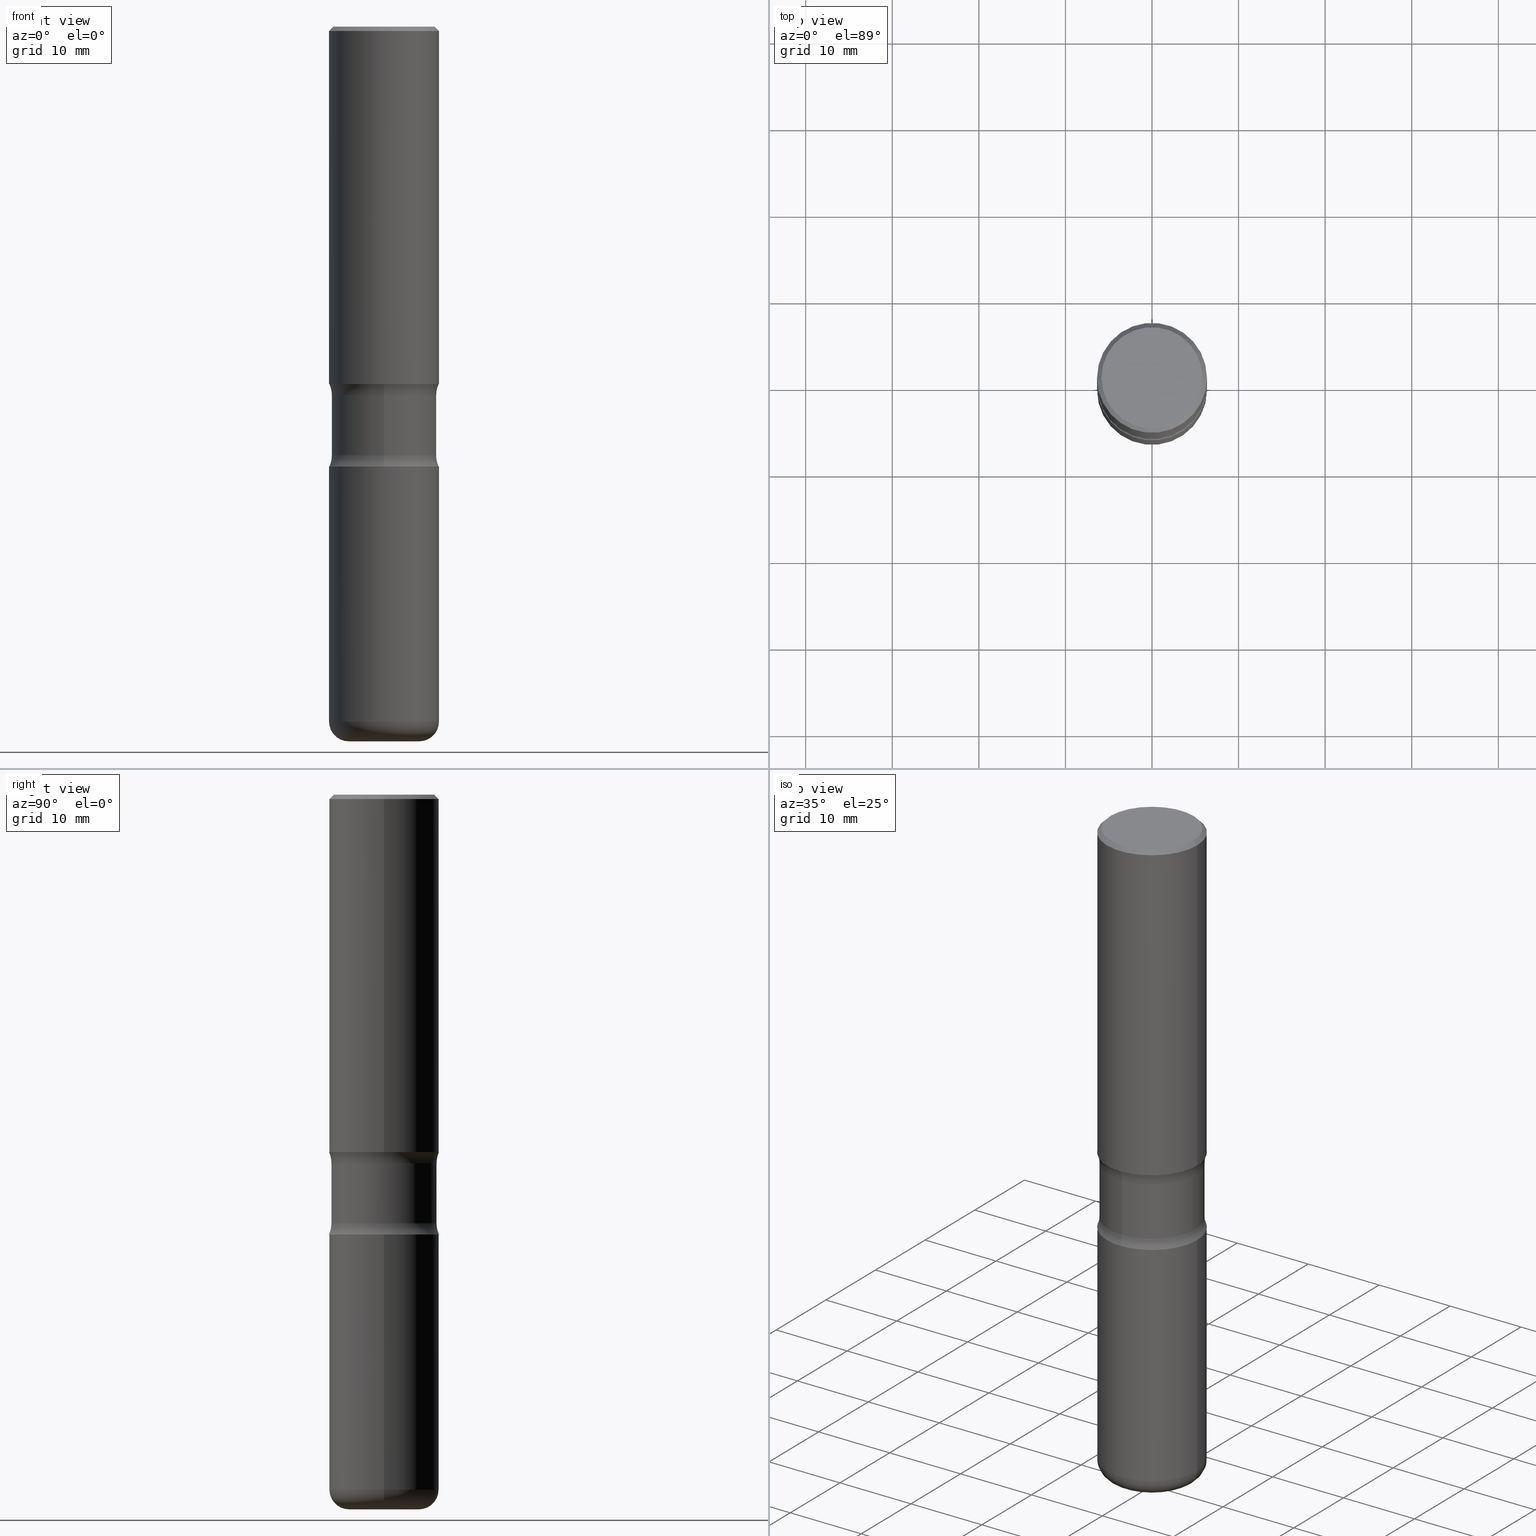
[diagram: canonical four-view strip — front | top / right | iso, engineering-drawing reading convention]
A machine part, canonical four-view strip (front | top / right | iso — engineering-drawing reading convention). The complete STEP part file that produces these views, byte-faithful:
ISO-10303-21;
HEADER;
FILE_DESCRIPTION (( 'STEP AP203' ),
    '1' );
FILE_NAME ('34018.STEP',
    '2024-03-01T22:56:39',
    ( '' ),
    ( '' ),
    'SwSTEP 2.0',
    'SolidWorks 2023',
    '' );
FILE_SCHEMA (( 'CONFIG_CONTROL_DESIGN' ));
ENDSEC;

DATA;
#1 = FACE_OUTER_BOUND ( 'NONE', #469, .T. ) ;
#2 = VERTEX_POINT ( 'NONE', #289 ) ;
#3 = DATE_AND_TIME ( #138, #49 ) ;
#4 = ORIENTED_EDGE ( 'NONE', *, *, #493, .F. ) ;
#5 = AXIS2_PLACEMENT_3D ( 'NONE', #192, #396, #486 ) ;
#6 = APPROVAL_STATUS ( 'not_yet_approved' ) ;
#7 = LINE ( 'NONE', #327, #521 ) ;
#8 = CC_DESIGN_PERSON_AND_ORGANIZATION_ASSIGNMENT ( #435, #485, ( #158 ) ) ;
#9 = ORIENTED_EDGE ( 'NONE', *, *, #105, .T. ) ;
#10 = APPLICATION_CONTEXT ( 'configuration controlled 3d designs of mechanical parts and assemblies' ) ;
#11 = APPROVAL_DATE_TIME ( #3, #148 ) ;
#12 = CARTESIAN_POINT ( 'NONE',  ( 4.890937612370274875E-29, -6.982962677686292743E-15, -2.000000000000000444 ) ) ;
#13 = EDGE_CURVE ( 'NONE', #339, #314, #405, .T. ) ;
#14 = VERTEX_POINT ( 'NONE', #249 ) ;
#15 = ORIENTED_EDGE ( 'NONE', *, *, #165, .T. ) ;
#16 = EDGE_LOOP ( 'NONE', ( #296, #519, #79, #173 ) ) ;
#17 = FACE_OUTER_BOUND ( 'NONE', #397, .T. ) ;
#18 = AXIS2_PLACEMENT_3D ( 'NONE', #203, #155, #331 ) ;
#19 = VECTOR ( 'NONE', #416, 39.37007874015748143 ) ;
#20 = COORDINATED_UNIVERSAL_TIME_OFFSET ( 5, 0, .BEHIND. ) ;
#21 = CARTESIAN_POINT ( 'NONE',  ( -0.2300000000000002320, 1.640996229256274294E-15, -3.414809992081464243E-17 ) ) ;
#22 = ORIENTED_EDGE ( 'NONE', *, *, #63, .F. ) ;
#23 = FACE_OUTER_BOUND ( 'NONE', #135, .T. ) ;
#24 = DIRECTION ( 'NONE',  ( 2.319831445618894347E-29, -3.671401190008483650E-15, -1.000000000000000000 ) ) ;
#25 = CIRCLE ( 'NONE', #146, 0.2500000000000006106 ) ;
#26 = CC_DESIGN_SECURITY_CLASSIFICATION ( #189, ( #85 ) ) ;
#27 = DIRECTION ( 'NONE',  ( 1.000000000000000000, -6.982962677686270655E-15, 0.000000000000000000 ) ) ;
#28 = ORIENTED_EDGE ( 'NONE', *, *, #37, .F. ) ;
#29 = PLANE ( 'NONE',  #274 ) ;
#30 = ORIENTED_EDGE ( 'NONE', *, *, #497, .T. ) ;
#31 = ADVANCED_FACE ( 'NONE', ( #336 ), #93, .T. ) ;
#32 = ADVANCED_FACE ( 'NONE', ( #108 ), #503, .F. ) ;
#33 = DIRECTION ( 'NONE',  ( -2.445468806185136597E-29, 3.491481338843145583E-15, 1.000000000000000000 ) ) ;
#34 = FACE_OUTER_BOUND ( 'NONE', #478, .T. ) ;
#35 = LOCAL_TIME ( 17, 56, 39.00000000000000000, #326 ) ;
#36 = CARTESIAN_POINT ( 'NONE',  ( -0.2500000000000004441, -9.256724191344087541E-15, -3.160000000000000142 ) ) ;
#37 = EDGE_CURVE ( 'NONE', #556, #250, #112, .T. ) ;
#38 = APPLICATION_CONTEXT ( 'configuration controlled 3d designs of mechanical parts and assemblies' ) ;
#39 = ORIENTED_EDGE ( 'NONE', *, *, #260, .F. ) ;
#40 = DIRECTION ( 'NONE',  ( 0.7071067811865473507, -7.319954787623256045E-15, -0.7071067811865476838 ) ) ;
#41 = DIRECTION ( 'NONE',  ( -2.445468806185136597E-29, 3.491481338843145583E-15, 1.000000000000000000 ) ) ;
#42 = EDGE_LOOP ( 'NONE', ( #292, #30, #39, #463 ) ) ;
#43 = ORIENTED_EDGE ( 'NONE', *, *, #165, .F. ) ;
#44 = CARTESIAN_POINT ( 'NONE',  ( 1.668928079967096646E-15, 0.2389999999999885827, -3.250000000000001332 ) ) ;
#45 = APPROVAL_ROLE ( '' ) ;
#46 = CARTESIAN_POINT ( 'NONE',  ( 0.000000000000000000, 0.000000000000000000, 0.000000000000000000 ) ) ;
#47 = AXIS2_PLACEMENT_3D ( 'NONE', #548, #160, #301 ) ;
#48 = AXIS2_PLACEMENT_3D ( 'NONE', #70, #287, #27 ) ;
#49 = LOCAL_TIME ( 17, 56, 39.00000000000000000, #277 ) ;
#50 = DATE_AND_TIME ( #89, #293 ) ;
#51 = DIRECTION ( 'NONE',  ( 1.000000000000000000, -6.982962677686265922E-15, 4.876176775795935232E-29 ) ) ;
#52 = DATE_AND_TIME ( #236, #147 ) ;
#53 = ORIENTED_EDGE ( 'NONE', *, *, #97, .T. ) ;
#54 = CARTESIAN_POINT ( 'NONE',  ( 4.890937612370306439E-31, -6.982962677686338448E-17, -0.02000000000000013572 ) ) ;
#55 = CARTESIAN_POINT ( 'NONE',  ( 0.000000000000000000, 0.000000000000000000, 0.000000000000000000 ) ) ;
#56 = DIRECTION ( 'NONE',  ( 6.982962677686265922E-15, 1.000000000000000000, -3.671401190008483650E-15 ) ) ;
#57 = VECTOR ( 'NONE', #168, 39.37007874015748143 ) ;
#58 = CIRCLE ( 'NONE', #494, 0.2500000000000004996 ) ;
#59 = APPROVAL_PERSON_ORGANIZATION ( #134, #206, #45 ) ;
#60 = DIRECTION ( 'NONE',  ( 2.319831445618894347E-29, -3.671401190008483650E-15, -1.000000000000000000 ) ) ;
#61 = EDGE_CURVE ( 'NONE', #316, #419, #328, .T. ) ;
#62 = CARTESIAN_POINT ( 'NONE',  ( 2.541798414677842119E-15, 0.3639999999999942171, -1.676273774973179753 ) ) ;
#63 = EDGE_CURVE ( 'NONE', #475, #99, #501, .T. ) ;
#64 = PLANE ( 'NONE',  #291 ) ;
#65 = DIRECTION ( 'NONE',  ( 1.000000000000000000, -6.982962677686266711E-15, 4.875813741439094729E-29 ) ) ;
#66 =( GEOMETRIC_REPRESENTATION_CONTEXT ( 3 ) GLOBAL_UNCERTAINTY_ASSIGNED_CONTEXT ( ( #229 ) ) GLOBAL_UNIT_ASSIGNED_CONTEXT ( ( #467, #77, #95 ) ) REPRESENTATION_CONTEXT ( 'NONE', 'WORKASPACE' ) );
#67 = CARTESIAN_POINT ( 'NONE',  ( 4.139947335781554076E-29, -5.794433829885863530E-15, -1.676273774973178199 ) ) ;
#68 = DIRECTION ( 'NONE',  ( 1.000000000000000000, -6.860497997771530774E-15, 4.838595496925816082E-29 ) ) ;
#69 = CC_DESIGN_PERSON_AND_ORGANIZATION_ASSIGNMENT ( #100, #280, ( #189 ) ) ;
#70 = CARTESIAN_POINT ( 'NONE',  ( 7.947773620101692818E-29, -1.134731435124022127E-14, -3.249999999999999556 ) ) ;
#71 = EDGE_LOOP ( 'NONE', ( #43, #543, #255, #177 ) ) ;
#72 = VECTOR ( 'NONE', #529, 39.37007874015748143 ) ;
#73 = AXIS2_PLACEMENT_3D ( 'NONE', #67, #24, #194 ) ;
#74 = CARTESIAN_POINT ( 'NONE',  ( 0.2500000000000005551, -7.419397845041682046E-15, -1.624999999999999778 ) ) ;
#75 = ORIENTED_EDGE ( 'NONE', *, *, #151, .T. ) ;
#76 = DIMENSIONAL_EXPONENTS ( 1.000000000000000000, 0.000000000000000000, 0.000000000000000000, 0.000000000000000000, 0.000000000000000000, 0.000000000000000000, 0.000000000000000000 ) ;
#77 =( NAMED_UNIT ( * ) PLANE_ANGLE_UNIT ( ) SI_UNIT ( $, .RADIAN. ) );
#78 = EDGE_CURVE ( 'NONE', #314, #303, #411, .T. ) ;
#79 = ORIENTED_EDGE ( 'NONE', *, *, #334, .F. ) ;
#80 = CARTESIAN_POINT ( 'NONE',  ( 3.973886810050846409E-29, -5.673657175620110635E-15, -1.624999999999999778 ) ) ;
#81 = ORIENTED_EDGE ( 'NONE', *, *, #298, .F. ) ;
#82 = ORIENTED_EDGE ( 'NONE', *, *, #181, .F. ) ;
#83 = CARTESIAN_POINT ( 'NONE',  ( 8.350811314681758556E-46, -1.192274536304357760E-31, -3.414809992080329023E-17 ) ) ;
#84 = AXIS2_PLACEMENT_3D ( 'NONE', #375, #153, #251 ) ;
#85 = PRODUCT_DEFINITION_FORMATION_WITH_SPECIFIED_SOURCE ( 'ANY', '', #158, .NOT_KNOWN. ) ;
#86 = CARTESIAN_POINT ( 'NONE',  ( 3.973886810050846409E-29, -5.673657175620110635E-15, -1.624999999999999778 ) ) ;
#87 = DESIGN_CONTEXT ( 'detailed design', #38, 'design' ) ;
#88 = DIRECTION ( 'NONE',  ( 1.000000000000000000, -6.982962677686266711E-15, 0.000000000000000000 ) ) ;
#89 = CALENDAR_DATE ( 2024, 1, 3 ) ;
#90 = ADVANCED_FACE ( 'NONE', ( #423 ), #513, .T. ) ;
#91 = CC_DESIGN_DATE_AND_TIME_ASSIGNMENT ( #398, #190, ( #189 ) ) ;
#92 = CARTESIAN_POINT ( 'NONE',  ( -1.639659021467319230E-15, -0.2390000000000117586, -3.249999999999999112 ) ) ;
#93 = TOROIDAL_SURFACE ( 'NONE', #282, 0.1600000000000005862, 0.08999999999999967748 ) ;
#94 = AXIS2_PLACEMENT_3D ( 'NONE', #80, #215, #117 ) ;
#95 =( NAMED_UNIT ( * ) SI_UNIT ( $, .STERADIAN. ) SOLID_ANGLE_UNIT ( ) );
#96 = ORIENTED_EDGE ( 'NONE', *, *, #238, .T. ) ;
#97 = EDGE_CURVE ( 'NONE', #154, #303, #499, .T. ) ;
#98 = DIRECTION ( 'NONE',  ( 6.860497997771530774E-15, 1.000000000000000000, 0.000000000000000000 ) ) ;
#99 = VERTEX_POINT ( 'NONE', #437 ) ;
#100 = PERSON_AND_ORGANIZATION ( #232, #394 ) ;
#101 = FACE_OUTER_BOUND ( 'NONE', #16, .T. ) ;
#102 = ORIENTED_EDGE ( 'NONE', *, *, #181, .T. ) ;
#103 = CARTESIAN_POINT ( 'NONE',  ( 1.668928079967066866E-15, 0.2389999999999934122, -1.948726225026823355 ) ) ;
#104 = AXIS2_PLACEMENT_3D ( 'NONE', #204, #33, #378 ) ;
#105 = EDGE_CURVE ( 'NONE', #213, #303, #385, .T. ) ;
#106 = EDGE_CURVE ( 'NONE', #184, #2, #241, .T. ) ;
#107 = DIRECTION ( 'NONE',  ( 2.438088387897960049E-29, -3.491481338843145188E-15, -1.000000000000000000 ) ) ;
#108 = FACE_OUTER_BOUND ( 'NONE', #383, .T. ) ;
#109 = EDGE_CURVE ( 'NONE', #419, #316, #483, .T. ) ;
#110 = CARTESIAN_POINT ( 'NONE',  ( -0.2500000000000003331, 1.675911042644705746E-15, -0.02000000000000013572 ) ) ;
#111 = FACE_OUTER_BOUND ( 'NONE', #472, .T. ) ;
#112 = CIRCLE ( 'NONE', #345, 0.2300000000000002320 ) ;
#113 = CARTESIAN_POINT ( 'NONE',  ( 2.541798414677849219E-15, 0.3639999999999933289, -1.948726225026823800 ) ) ;
#114 = DIRECTION ( 'NONE',  ( 1.000000000000000000, -6.982962677686268288E-15, 0.000000000000000000 ) ) ;
#115 = EDGE_LOOP ( 'NONE', ( #235, #264, #252, #123 ) ) ;
#116 = CARTESIAN_POINT ( 'NONE',  ( 4.146966208775284275E-29, -5.784382404269399522E-15, -1.676273774973178199 ) ) ;
#117 = DIRECTION ( 'NONE',  ( 6.982962677686265922E-15, 1.000000000000000000, -3.671401190008483650E-15 ) ) ;
#118 = CIRCLE ( 'NONE', #438, 0.1600000000000005862 ) ;
#119 = AXIS2_PLACEMENT_3D ( 'NONE', #86, #341, #420 ) ;
#120 = CARTESIAN_POINT ( 'NONE',  ( 0.2500000000000003331, -1.784954126219748555E-15, -0.02000000000000013572 ) ) ;
#121 = EDGE_LOOP ( 'NONE', ( #452, #351, #424, #162 ) ) ;
#122 = DIRECTION ( 'NONE',  ( 2.445468806185136597E-29, -3.491481338843145583E-15, -1.000000000000000000 ) ) ;
#123 = ORIENTED_EDGE ( 'NONE', *, *, #105, .F. ) ;
#124 = MANIFOLD_SOLID_BREP ( 'Body-Move/Copy2[1]', #273 ) ;
#125 = ORIENTED_EDGE ( 'NONE', *, *, #106, .F. ) ;
#126 = MANIFOLD_SOLID_BREP ( 'Body-Move/Copy2[2]', #363 ) ;
#127 = DIRECTION ( 'NONE',  ( 6.982962677686265922E-15, 1.000000000000000000, -3.671401190008483650E-15 ) ) ;
#128 = EDGE_CURVE ( 'NONE', #213, #339, #455, .T. ) ;
#129 = DIRECTION ( 'NONE',  ( 2.319831445618894347E-29, -3.671401190008483650E-15, -1.000000000000000000 ) ) ;
#130 = AXIS2_PLACEMENT_3D ( 'NONE', #323, #403, #98 ) ;
#131 = AXIS2_PLACEMENT_3D ( 'NONE', #318, #535, #139 ) ;
#132 = TOROIDAL_SURFACE ( 'NONE', #413, 0.3639999999999999902, 0.1250000000000000555 ) ;
#133 = ADVANCED_FACE ( 'NONE', ( #183 ), #278, .T. ) ;
#134 = PERSON_AND_ORGANIZATION ( #232, #394 ) ;
#135 = EDGE_LOOP ( 'NONE', ( #179, #214 ) ) ;
#136 = DIRECTION ( 'NONE',  ( 6.982962677686266711E-15, 1.000000000000000000, -4.572130533329308080E-15 ) ) ;
#137 = ORIENTED_EDGE ( 'NONE', *, *, #195, .F. ) ;
#138 = CALENDAR_DATE ( 2024, 1, 3 ) ;
#139 = DIRECTION ( 'NONE',  ( 1.000000000000000000, -6.982962677686270655E-15, 0.000000000000000000 ) ) ;
#140 = VECTOR ( 'NONE', #407, 39.37007874015748143 ) ;
#141 = FACE_OUTER_BOUND ( 'NONE', #71, .T. ) ;
#142 = APPROVAL_ROLE ( '' ) ;
#143 = DIRECTION ( 'NONE',  ( -2.445468806185136597E-29, 3.491481338843145583E-15, 1.000000000000000000 ) ) ;
#144 = DIRECTION ( 'NONE',  ( 6.982962677686265922E-15, 1.000000000000000000, -3.671401190008483650E-15 ) ) ;
#145 = DIRECTION ( 'NONE',  ( 1.000000000000000000, -6.982962677686265922E-15, 4.876176775795935232E-29 ) ) ;
#146 = AXIS2_PLACEMENT_3D ( 'NONE', #271, #361, #231 ) ;
#147 = LOCAL_TIME ( 17, 56, 39.00000000000000000, #20 ) ;
#148 = APPROVAL ( #6, 'UNSPECIFIED' ) ;
#149 = CARTESIAN_POINT ( 'NONE',  ( 4.890937612370306439E-31, -6.982962677686338448E-17, -0.02000000000000013572 ) ) ;
#150 = ADVANCED_FACE ( 'NONE', ( #101 ), #409, .T. ) ;
#151 = EDGE_CURVE ( 'NONE', #547, #184, #199, .T. ) ;
#152 = APPROVAL ( #182, 'UNSPECIFIED' ) ;
#153 = DIRECTION ( 'NONE',  ( -2.445468806185136597E-29, 3.491481338843145583E-15, 1.000000000000000000 ) ) ;
#154 = VERTEX_POINT ( 'NONE', #442 ) ;
#155 = DIRECTION ( 'NONE',  ( 2.319831445618894347E-29, -3.671401190008483650E-15, -1.000000000000000000 ) ) ;
#156 = DIRECTION ( 'NONE',  ( 2.319831445618894347E-29, -3.671401190008483650E-15, -1.000000000000000000 ) ) ;
#157 = ORIENTED_EDGE ( 'NONE', *, *, #217, .T. ) ;
#158 = PRODUCT ( '34018', '34018', '', ( #317 ) ) ;
#159 = AXIS2_PLACEMENT_3D ( 'NONE', #186, #143, #399 ) ;
#160 = DIRECTION ( 'NONE',  ( 2.319831445618894347E-29, -3.671401190008483650E-15, -1.000000000000000000 ) ) ;
#161 = CARTESIAN_POINT ( 'NONE',  ( 4.890937612370274875E-29, -6.982962677686292743E-15, -2.000000000000000444 ) ) ;
#162 = ORIENTED_EDGE ( 'NONE', *, *, #238, .F. ) ;
#163 = DIRECTION ( 'NONE',  ( -2.445468806185136597E-29, 3.491481338843145583E-15, 1.000000000000000000 ) ) ;
#164 = ORIENTED_EDGE ( 'NONE', *, *, #432, .F. ) ;
#165 = EDGE_CURVE ( 'NONE', #14, #316, #540, .T. ) ;
#166 =( LENGTH_UNIT ( ) NAMED_UNIT ( * ) SI_UNIT ( $, .METRE. ) );
#167 = EDGE_LOOP ( 'NONE', ( #164, #342 ) ) ;
#168 = DIRECTION ( 'NONE',  ( -2.445468806185136877E-29, 3.491481338843145188E-15, 1.000000000000000000 ) ) ;
#169 = AXIS2_PLACEMENT_3D ( 'NONE', #553, #474, #220 ) ;
#170 = DIRECTION ( 'NONE',  ( 1.000000000000000000, -6.982962677686266711E-15, 4.876176775795935232E-29 ) ) ;
#171 = ADVANCED_BREP_SHAPE_REPRESENTATION ( '34018', ( #124, #126, #313, #408 ), #66 ) ;
#172 = DIRECTION ( 'NONE',  ( -1.000000000000000000, 7.105427357600993181E-15, 0.000000000000000000 ) ) ;
#173 = ORIENTED_EDGE ( 'NONE', *, *, #97, .F. ) ;
#174 = CONICAL_SURFACE ( 'NONE', #200, 0.2500000000000003331, 0.7853981633974480570 ) ;
#175 = CARTESIAN_POINT ( 'NONE',  ( 0.2500000000000004996, -1.745740669421570030E-15, 1.219044193948986190E-29 ) ) ;
#176 = CC_DESIGN_APPROVAL ( #206, ( #466 ) ) ;
#177 = ORIENTED_EDGE ( 'NONE', *, *, #109, .T. ) ;
#178 = PERSON_AND_ORGANIZATION ( #232, #394 ) ;
#179 = ORIENTED_EDGE ( 'NONE', *, *, #493, .T. ) ;
#180 = DIRECTION ( 'NONE',  ( 6.982962677686266711E-15, 1.000000000000000000, -3.278217592397110735E-15 ) ) ;
#181 = EDGE_CURVE ( 'NONE', #309, #441, #445, .T. ) ;
#182 = APPROVAL_STATUS ( 'not_yet_approved' ) ;
#183 = FACE_OUTER_BOUND ( 'NONE', #121, .T. ) ;
#184 = VERTEX_POINT ( 'NONE', #448 ) ;
#185 = PERSON_AND_ORGANIZATION_ROLE ( 'creator' ) ;
#186 = CARTESIAN_POINT ( 'NONE',  ( 4.890937612370274875E-29, -6.982962677686292743E-15, -2.000000000000000444 ) ) ;
#187 = AXIS2_PLACEMENT_3D ( 'NONE', #450, #196, #377 ) ;
#188 = AXIS2_PLACEMENT_3D ( 'NONE', #365, #538, #488 ) ;
#189 = SECURITY_CLASSIFICATION ( '', '', #487 ) ;
#190 = DATE_TIME_ROLE ( 'classification_date' ) ;
#191 = ADVANCED_FACE ( 'NONE', ( #141 ), #518, .F. ) ;
#192 = CARTESIAN_POINT ( 'NONE',  ( 4.139947335781554076E-29, -5.794433829885863530E-15, -1.676273774973178199 ) ) ;
#193 = DIRECTION ( 'NONE',  ( 1.000000000000000000, -6.982962677686270655E-15, 4.883557194083114583E-29 ) ) ;
#194 = DIRECTION ( 'NONE',  ( 6.982962677686265922E-15, 1.000000000000000000, -3.429097899996981454E-15 ) ) ;
#195 = EDGE_CURVE ( 'NONE', #14, #314, #482, .T. ) ;
#196 = DIRECTION ( 'NONE',  ( -2.438088387897960049E-29, 3.491481338843145188E-15, 1.000000000000000000 ) ) ;
#197 = ORIENTED_EDGE ( 'NONE', *, *, #13, .F. ) ;
#198 = DIRECTION ( 'NONE',  ( -1.000000000000000000, 6.982962677686265922E-15, -4.883557194083112901E-29 ) ) ;
#199 = CIRCLE ( 'NONE', #131, 0.08999999999999969136 ) ;
#200 = AXIS2_PLACEMENT_3D ( 'NONE', #510, #122, #555 ) ;
#201 = ORIENTED_EDGE ( 'NONE', *, *, #61, .F. ) ;
#202 = FACE_OUTER_BOUND ( 'NONE', #257, .T. ) ;
#203 = CARTESIAN_POINT ( 'NONE',  ( 4.021000820263187463E-29, -5.606187231433109599E-15, -1.624999999999999778 ) ) ;
#204 = CARTESIAN_POINT ( 'NONE',  ( 0.000000000000000000, 0.000000000000000000, 0.000000000000000000 ) ) ;
#205 = DIRECTION ( 'NONE',  ( 2.319831445618894347E-29, -3.671401190008483650E-15, -1.000000000000000000 ) ) ;
#206 = APPROVAL ( #270, 'UNSPECIFIED' ) ;
#207 = AXIS2_PLACEMENT_3D ( 'NONE', #54, #325, #88 ) ;
#208 = CIRCLE ( 'NONE', #530, 0.2390000000000002123 ) ;
#209 = ORIENTED_EDGE ( 'NONE', *, *, #492, .T. ) ;
#210 = FACE_OUTER_BOUND ( 'NONE', #376, .T. ) ;
#211 = ORIENTED_EDGE ( 'NONE', *, *, #109, .F. ) ;
#212 = DIRECTION ( 'NONE',  ( 1.000000000000000000, -6.982962677686266711E-15, 4.875813741439094729E-29 ) ) ;
#213 = VERTEX_POINT ( 'NONE', #440 ) ;
#214 = ORIENTED_EDGE ( 'NONE', *, *, #37, .T. ) ;
#215 = DIRECTION ( 'NONE',  ( 2.319831445618893787E-29, -3.671401190008483650E-15, -1.000000000000000000 ) ) ;
#216 = ORIENTED_EDGE ( 'NONE', *, *, #279, .F. ) ;
#217 = EDGE_CURVE ( 'NONE', #433, #547, #118, .T. ) ;
#218 = AXIS2_PLACEMENT_3D ( 'NONE', #283, #444, #136 ) ;
#219 = AXIS2_PLACEMENT_3D ( 'NONE', #248, #453, #496 ) ;
#220 = DIRECTION ( 'NONE',  ( 6.982962677686265922E-15, 1.000000000000000000, -3.278217592397109157E-15 ) ) ;
#221 = CYLINDRICAL_SURFACE ( 'NONE', #247, 0.2390000000000001568 ) ;
#222 = ORIENTED_EDGE ( 'NONE', *, *, #497, .F. ) ;
#223 = COORDINATED_UNIVERSAL_TIME_OFFSET ( 5, 0, .BEHIND. ) ;
#224 = ORIENTED_EDGE ( 'NONE', *, *, #533, .F. ) ;
#225 = DIRECTION ( 'NONE',  ( 2.319831445618894347E-29, -3.671401190008483650E-15, -1.000000000000000000 ) ) ;
#226 = PERSON_AND_ORGANIZATION ( #232, #394 ) ;
#227 = AXIS2_PLACEMENT_3D ( 'NONE', #315, #240, #180 ) ;
#228 = EDGE_LOOP ( 'NONE', ( #222, #157, #75, #387 ) ) ;
#229 = UNCERTAINTY_MEASURE_WITH_UNIT (LENGTH_MEASURE( 1.000000000000000082E-05 ), #467, 'distance_accuracy_value', 'NONE');
#230 = AXIS2_PLACEMENT_3D ( 'NONE', #62, #198, #246 ) ;
#231 = DIRECTION ( 'NONE',  ( 1.000000000000000000, -6.982962677686269077E-15, 0.000000000000000000 ) ) ;
#232 = PERSON ( 'UNSPECIFIED', 'UNSPECIFIED', 'UNSPECIFIED', ('UNSPECIFIED'), ('UNSPECIFIED'), ('UNSPECIFIED') ) ;
#233 = PERSON_AND_ORGANIZATION_ROLE ( 'design_supplier' ) ;
#234 = PLANE ( 'NONE',  #188 ) ;
#235 = ORIENTED_EDGE ( 'NONE', *, *, #492, .F. ) ;
#236 = CALENDAR_DATE ( 2024, 1, 3 ) ;
#237 = DIRECTION ( 'NONE',  ( -2.445468806185136597E-29, 3.491481338843145583E-15, 1.000000000000000000 ) ) ;
#238 = EDGE_CURVE ( 'NONE', #515, #441, #244, .T. ) ;
#239 = CALENDAR_DATE ( 2024, 1, 3 ) ;
#240 = DIRECTION ( 'NONE',  ( 2.319831445618894347E-29, -3.671401190008483650E-15, -1.000000000000000000 ) ) ;
#241 = LINE ( 'NONE', #281, #72 ) ;
#242 = CIRCLE ( 'NONE', #284, 0.2500000000000005551 ) ;
#243 = DIRECTION ( 'NONE',  ( -2.445468806185136597E-29, 3.491481338843145583E-15, 1.000000000000000000 ) ) ;
#244 = LINE ( 'NONE', #175, #140 ) ;
#245 = DIRECTION ( 'NONE',  ( -2.445468806185136597E-29, 3.491481338843145583E-15, 1.000000000000000000 ) ) ;
#246 = DIRECTION ( 'NONE',  ( -6.982962677686267499E-15, -1.000000000000000000, 0.000000000000000000 ) ) ;
#247 = AXIS2_PLACEMENT_3D ( 'NONE', #380, #129, #386 ) ;
#248 = CARTESIAN_POINT ( 'NONE',  ( 4.765549195098011241E-29, -6.803941249195398607E-15, -1.948726225026822467 ) ) ;
#249 = CARTESIAN_POINT ( 'NONE',  ( -1.677391760455100666E-15, -0.2390000000000059299, -1.676273774973177533 ) ) ;
#250 = VERTEX_POINT ( 'NONE', #21 ) ;
#251 = DIRECTION ( 'NONE',  ( 1.000000000000000000, -6.982962677686269077E-15, 0.000000000000000000 ) ) ;
#252 = ORIENTED_EDGE ( 'NONE', *, *, #78, .T. ) ;
#253 = ORIENTED_EDGE ( 'NONE', *, *, #78, .F. ) ;
#254 = CARTESIAN_POINT ( 'NONE',  ( -1.715124499442837334E-15, -0.2500000000000074940, -1.999999999999999778 ) ) ;
#255 = ORIENTED_EDGE ( 'NONE', *, *, #401, .T. ) ;
#256 = TOROIDAL_SURFACE ( 'NONE', #219, 0.3640000000000001568, 0.1250000000000000000 ) ;
#257 = EDGE_LOOP ( 'NONE', ( #431, #306, #506, #125 ) ) ;
#258 = EDGE_CURVE ( 'NONE', #14, #154, #428, .T. ) ;
#259 = CC_DESIGN_DATE_AND_TIME_ASSIGNMENT ( #52, #362, ( #466 ) ) ;
#260 = EDGE_CURVE ( 'NONE', #184, #475, #25, .T. ) ;
#261 = ADVANCED_FACE ( 'NONE', ( #17 ), #234, .F. ) ;
#262 = ORIENTED_EDGE ( 'NONE', *, *, #388, .F. ) ;
#263 = DIRECTION ( 'NONE',  ( 1.000000000000000000, -6.982962677686270655E-15, 4.883557194083114583E-29 ) ) ;
#264 = ORIENTED_EDGE ( 'NONE', *, *, #13, .T. ) ;
#265 = AXIS2_PLACEMENT_3D ( 'NONE', #83, #559, #212 ) ;
#266 = FACE_OUTER_BOUND ( 'NONE', #167, .T. ) ;
#267 = ORIENTED_EDGE ( 'NONE', *, *, #258, .T. ) ;
#268 = SHAPE_DEFINITION_REPRESENTATION ( #461, #171 ) ;
#269 = CARTESIAN_POINT ( 'NONE',  ( 0.000000000000000000, 0.000000000000000000, 0.000000000000000000 ) ) ;
#270 = APPROVAL_STATUS ( 'not_yet_approved' ) ;
#271 = CARTESIAN_POINT ( 'NONE',  ( 7.727681427545032274E-29, -1.103308103074433958E-14, -3.160000000000000142 ) ) ;
#272 = COORDINATED_UNIVERSAL_TIME_OFFSET ( 5, 0, .BEHIND. ) ;
#273 = CLOSED_SHELL ( 'NONE', ( #434, #31, #532, #458, #544, #391 ) ) ;
#274 = AXIS2_PLACEMENT_3D ( 'NONE', #545, #107, #451 ) ;
#275 = CARTESIAN_POINT ( 'NONE',  ( 7.947773620101692818E-29, -1.134731435124022127E-14, -3.249999999999999556 ) ) ;
#276 = EDGE_LOOP ( 'NONE', ( #294, #512 ) ) ;
#277 = COORDINATED_UNIVERSAL_TIME_OFFSET ( 5, 0, .BEHIND. ) ;
#278 = CYLINDRICAL_SURFACE ( 'NONE', #446, 0.2500000000000004996 ) ;
#279 = EDGE_CURVE ( 'NONE', #99, #2, #338, .T. ) ;
#280 = PERSON_AND_ORGANIZATION_ROLE ( 'classification_officer' ) ;
#281 = CARTESIAN_POINT ( 'NONE',  ( 0.2500000000000005551, -1.745740669421570622E-15, 1.219044193948986471E-29 ) ) ;
#282 = AXIS2_PLACEMENT_3D ( 'NONE', #536, #243, #193 ) ;
#283 = CARTESIAN_POINT ( 'NONE',  ( 7.790726919393891548E-29, -1.157221416519689612E-14, -3.250000000000000000 ) ) ;
#284 = AXIS2_PLACEMENT_3D ( 'NONE', #425, #163, #430 ) ;
#285 = DIRECTION ( 'NONE',  ( -2.445468806185136597E-29, 3.491481338843145583E-15, 1.000000000000000000 ) ) ;
#286 = DIRECTION ( 'NONE',  ( -1.000000000000000000, 6.982962677686265922E-15, -4.876176775795935793E-29 ) ) ;
#287 = DIRECTION ( 'NONE',  ( -2.445468806185136597E-29, 3.491481338843145583E-15, 1.000000000000000000 ) ) ;
#288 = DIRECTION ( 'NONE',  ( -2.445468806185136597E-29, 3.491481338843145583E-15, 1.000000000000000000 ) ) ;
#289 = CARTESIAN_POINT ( 'NONE',  ( 0.2500000000000004996, -8.728703347107863365E-15, -2.000000000000000444 ) ) ;
#290 = CLOSED_SHELL ( 'NONE', ( #150, #320, #449, #191, #525, #261, #374, #489 ) ) ;
#291 = AXIS2_PLACEMENT_3D ( 'NONE', #370, #295, #286 ) ;
#292 = ORIENTED_EDGE ( 'NONE', *, *, #432, .T. ) ;
#293 = LOCAL_TIME ( 17, 56, 39.00000000000000000, #272 ) ;
#294 = ORIENTED_EDGE ( 'NONE', *, *, #414, .T. ) ;
#295 = DIRECTION ( 'NONE',  ( 2.438088387897960049E-29, -3.491481338843145188E-15, -1.000000000000000000 ) ) ;
#296 = ORIENTED_EDGE ( 'NONE', *, *, #355, .T. ) ;
#297 = CARTESIAN_POINT ( 'NONE',  ( -0.1600000000000005862, -9.733585082684072174E-15, -3.249999999999999556 ) ) ;
#298 = EDGE_CURVE ( 'NONE', #523, #309, #7, .T. ) ;
#299 = AXIS2_PLACEMENT_3D ( 'NONE', #354, #60, #56 ) ;
#300 = CIRCLE ( 'NONE', #48, 0.1600000000000005862 ) ;
#301 = DIRECTION ( 'NONE',  ( 6.982962677686265133E-15, 1.000000000000000000, -3.429097899996980271E-15 ) ) ;
#302 = ORIENTED_EDGE ( 'NONE', *, *, #304, .T. ) ;
#303 = VERTEX_POINT ( 'NONE', #103 ) ;
#304 = EDGE_CURVE ( 'NONE', #441, #309, #465, .T. ) ;
#305 = LENGTH_MEASURE_WITH_UNIT ( LENGTH_MEASURE( 0.02539999999999999897 ), #166 );
#306 = ORIENTED_EDGE ( 'NONE', *, *, #63, .T. ) ;
#307 = FACE_OUTER_BOUND ( 'NONE', #417, .T. ) ;
#308 = ORIENTED_EDGE ( 'NONE', *, *, #533, .T. ) ;
#309 = VERTEX_POINT ( 'NONE', #335 ) ;
#310 = ORIENTED_EDGE ( 'NONE', *, *, #106, .T. ) ;
#311 = AXIS2_PLACEMENT_3D ( 'NONE', #511, #312, #170 ) ;
#312 = DIRECTION ( 'NONE',  ( -2.445468806185136597E-29, 3.491481338843145583E-15, 1.000000000000000000 ) ) ;
#313 = MANIFOLD_SOLID_BREP ( 'Body-Move/Copy2[4]', #290 ) ;
#314 = VERTEX_POINT ( 'NONE', #539 ) ;
#315 = CARTESIAN_POINT ( 'NONE',  ( 4.021000820263187463E-29, -5.606187231433109599E-15, -1.624999999999999778 ) ) ;
#316 = VERTEX_POINT ( 'NONE', #459 ) ;
#317 = MECHANICAL_CONTEXT ( 'NONE', #10, 'mechanical' ) ;
#318 = CARTESIAN_POINT ( 'NONE',  ( 0.1600000000000005862, -1.215035505917414762E-14, -3.160000000000000142 ) ) ;
#319 = DIRECTION ( 'NONE',  ( -6.982962677686266711E-15, -1.000000000000000000, 0.000000000000000000 ) ) ;
#320 = ADVANCED_FACE ( 'NONE', ( #418 ), #439, .F. ) ;
#321 = VECTOR ( 'NONE', #225, 39.37007874015748143 ) ;
#322 = AXIS2_PLACEMENT_3D ( 'NONE', #422, #41, #263 ) ;
#323 = CARTESIAN_POINT ( 'NONE',  ( -2.497221271188795780E-15, -0.3640000000000058189, -1.676273774973176867 ) ) ;
#324 = PERSON_AND_ORGANIZATION_ROLE ( 'creator' ) ;
#325 = DIRECTION ( 'NONE',  ( -2.445468806185136597E-29, 3.491481338843145583E-15, 1.000000000000000000 ) ) ;
#326 = COORDINATED_UNIVERSAL_TIME_OFFSET ( 5, 0, .BEHIND. ) ;
#327 = CARTESIAN_POINT ( 'NONE',  ( -0.2500000000000004996, 1.776356839400254015E-15, -1.229733772563728688E-29 ) ) ;
#328 = CIRCLE ( 'NONE', #18, 0.2500000000000003886 ) ;
#329 = DIRECTION ( 'NONE',  ( 6.982962677686265133E-15, 1.000000000000000000, -3.429097899996980271E-15 ) ) ;
#330 = CIRCLE ( 'NONE', #265, 0.2300000000000002320 ) ;
#331 = DIRECTION ( 'NONE',  ( 6.982962677686266711E-15, 1.000000000000000000, -3.278217592397110735E-15 ) ) ;
#332 = CARTESIAN_POINT ( 'NONE',  ( 4.765549195098011241E-29, -6.803941249195398607E-15, -1.948726225026822467 ) ) ;
#333 = CYLINDRICAL_SURFACE ( 'NONE', #104, 0.2500000000000005551 ) ;
#334 = EDGE_CURVE ( 'NONE', #303, #314, #208, .T. ) ;
#335 = CARTESIAN_POINT ( 'NONE',  ( -0.2500000000000003331, 1.675911042644705746E-15, -0.02000000000000013572 ) ) ;
#336 = FACE_OUTER_BOUND ( 'NONE', #42, .T. ) ;
#337 = AXIS2_PLACEMENT_3D ( 'NONE', #12, #359, #526 ) ;
#338 = CIRCLE ( 'NONE', #159, 0.2500000000000004996 ) ;
#339 = VERTEX_POINT ( 'NONE', #254 ) ;
#340 = FACE_OUTER_BOUND ( 'NONE', #514, .T. ) ;
#341 = DIRECTION ( 'NONE',  ( -2.445468806185136597E-29, 3.491481338843145583E-15, 1.000000000000000000 ) ) ;
#342 = ORIENTED_EDGE ( 'NONE', *, *, #217, .F. ) ;
#343 = DIRECTION ( 'NONE',  ( 2.438088387897960049E-29, -3.491481338843145188E-15, -1.000000000000000000 ) ) ;
#344 = ORIENTED_EDGE ( 'NONE', *, *, #128, .F. ) ;
#345 = AXIS2_PLACEMENT_3D ( 'NONE', #500, #454, #65 ) ;
#346 = CIRCLE ( 'NONE', #73, 0.2390000000000001290 ) ;
#347 = LOCAL_TIME ( 17, 56, 39.00000000000000000, #223 ) ;
#348 = CARTESIAN_POINT ( 'NONE',  ( 0.2300000000000002320, -1.681434332853601180E-15, -3.414809992079179628E-17 ) ) ;
#349 = LINE ( 'NONE', #120, #447 ) ;
#350 = CYLINDRICAL_SURFACE ( 'NONE', #311, 0.2500000000000005551 ) ;
#351 = ORIENTED_EDGE ( 'NONE', *, *, #298, .T. ) ;
#352 = AXIS2_PLACEMENT_3D ( 'NONE', #524, #288, #546 ) ;
#353 = APPROVAL_PERSON_ORGANIZATION ( #527, #148, #443 ) ;
#354 = CARTESIAN_POINT ( 'NONE',  ( 4.146966208775284275E-29, -5.784382404269399522E-15, -1.676273774973178199 ) ) ;
#355 = EDGE_CURVE ( 'NONE', #154, #14, #346, .T. ) ;
#356 = EDGE_LOOP ( 'NONE', ( #197, #344, #9, #473 ) ) ;
#357 = CC_DESIGN_PERSON_AND_ORGANIZATION_ASSIGNMENT ( #226, #185, ( #466 ) ) ;
#358 = APPROVAL_DATE_TIME ( #490, #152 ) ;
#359 = DIRECTION ( 'NONE',  ( 2.319831445618894347E-29, -3.671401190008483650E-15, -1.000000000000000000 ) ) ;
#360 = CALENDAR_DATE ( 2024, 1, 3 ) ;
#361 = DIRECTION ( 'NONE',  ( -2.445468806185136597E-29, 3.491481338843145583E-15, 1.000000000000000000 ) ) ;
#362 = DATE_TIME_ROLE ( 'creation_date' ) ;
#363 = CLOSED_SHELL ( 'NONE', ( #133, #368, #557, #373, #32, #90 ) ) ;
#364 = CIRCLE ( 'NONE', #84, 0.2500000000000006106 ) ;
#365 = CARTESIAN_POINT ( 'NONE',  ( 1.838714799431134984E-29, -1.135391946754910364E-14, -2.000000000000000444 ) ) ;
#366 = PERSON_AND_ORGANIZATION ( #232, #394 ) ;
#367 = DIRECTION ( 'NONE',  ( -2.445468806185136597E-29, 3.491481338843145583E-15, 1.000000000000000000 ) ) ;
#368 = ADVANCED_FACE ( 'NONE', ( #111 ), #457, .T. ) ;
#369 = VECTOR ( 'NONE', #436, 39.37007874015748143 ) ;
#370 = CARTESIAN_POINT ( 'NONE',  ( 1.606081415867843039E-15, 0.2300000000000002320, -8.201147578943259875E-16 ) ) ;
#371 = CIRCLE ( 'NONE', #476, 0.08999999999999969136 ) ;
#372 = FACE_OUTER_BOUND ( 'NONE', #276, .T. ) ;
#373 = ADVANCED_FACE ( 'NONE', ( #23 ), #64, .F. ) ;
#374 = ADVANCED_FACE ( 'NONE', ( #504 ), #256, .F. ) ;
#375 = CARTESIAN_POINT ( 'NONE',  ( 7.727681427545032274E-29, -1.103308103074433958E-14, -3.160000000000000142 ) ) ;
#376 = EDGE_LOOP ( 'NONE', ( #509, #4, #468, #102 ) ) ;
#377 = DIRECTION ( 'NONE',  ( 1.000000000000000000, -6.982962677686265922E-15, 4.876176775795935793E-29 ) ) ;
#378 = DIRECTION ( 'NONE',  ( 1.000000000000000000, -6.982962677686266711E-15, 4.876176775795935232E-29 ) ) ;
#379 = CARTESIAN_POINT ( 'NONE',  ( -2.497221271188790652E-15, -0.3640000000000069846, -1.948726225026821135 ) ) ;
#380 = CARTESIAN_POINT ( 'NONE',  ( 7.790726919393891548E-29, -1.157221416519689612E-14, -3.250000000000000000 ) ) ;
#381 = ORIENTED_EDGE ( 'NONE', *, *, #258, .F. ) ;
#382 = CARTESIAN_POINT ( 'NONE',  ( -0.2500000000000005551, -1.095386561798230783E-15, -1.624999999999999778 ) ) ;
#383 = EDGE_LOOP ( 'NONE', ( #480, #224 ) ) ;
#384 = CARTESIAN_POINT ( 'NONE',  ( 1.569755810607994968E-28, -2.491818769792108384E-16, -3.249999999999999556 ) ) ;
#385 = CIRCLE ( 'NONE', #427, 0.1250000000000000000 ) ;
#386 = DIRECTION ( 'NONE',  ( 6.982962677686266711E-15, 1.000000000000000000, -4.572130533329308080E-15 ) ) ;
#387 = ORIENTED_EDGE ( 'NONE', *, *, #400, .F. ) ;
#388 = EDGE_CURVE ( 'NONE', #250, #309, #498, .T. ) ;
#389 = CARTESIAN_POINT ( 'NONE',  ( -0.1600000000000005862, -9.896212653528176699E-15, -3.160000000000000142 ) ) ;
#390 = DIRECTION ( 'NONE',  ( 0.000000000000000000, 0.000000000000000000, 1.000000000000000000 ) ) ;
#391 = ADVANCED_FACE ( 'NONE', ( #372 ), #29, .F. ) ;
#392 = AXIS2_PLACEMENT_3D ( 'NONE', #379, #68, #410 ) ;
#393 = CIRCLE ( 'NONE', #119, 0.2500000000000005551 ) ;
#394 = ORGANIZATION ( 'UNSPECIFIED', 'UNSPECIFIED', '' ) ;
#395 = APPROVAL_DATE_TIME ( #50, #206 ) ;
#396 = DIRECTION ( 'NONE',  ( 2.319831445618894347E-29, -3.671401190008483650E-15, -1.000000000000000000 ) ) ;
#397 = EDGE_LOOP ( 'NONE', ( #508, #209 ) ) ;
#398 = DATE_AND_TIME ( #239, #347 ) ;
#399 = DIRECTION ( 'NONE',  ( 1.000000000000000000, -6.982962677686268288E-15, 0.000000000000000000 ) ) ;
#400 = EDGE_CURVE ( 'NONE', #475, #184, #364, .T. ) ;
#401 = EDGE_CURVE ( 'NONE', #154, #419, #551, .T. ) ;
#402 = ORIENTED_EDGE ( 'NONE', *, *, #400, .T. ) ;
#403 = DIRECTION ( 'NONE',  ( 1.000000000000000000, -6.860497997771530774E-15, 4.838595496925816082E-29 ) ) ;
#404 = PERSON_AND_ORGANIZATION ( #232, #394 ) ;
#405 = CIRCLE ( 'NONE', #392, 0.1250000000000000000 ) ;
#406 = TOROIDAL_SURFACE ( 'NONE', #322, 0.1600000000000005862, 0.08999999999999967748 ) ;
#407 = DIRECTION ( 'NONE',  ( -2.445468806185136877E-29, 3.491481338843145188E-15, 1.000000000000000000 ) ) ;
#408 = AXIS2_PLACEMENT_3D ( 'NONE', #55, #390, #537 ) ;
#409 = CYLINDRICAL_SURFACE ( 'NONE', #218, 0.2390000000000001568 ) ;
#410 = DIRECTION ( 'NONE',  ( 6.860497997771529985E-15, 1.000000000000000000, 0.000000000000000000 ) ) ;
#411 = CIRCLE ( 'NONE', #47, 0.2390000000000002123 ) ;
#412 = DIRECTION ( 'NONE',  ( 2.445468806185136597E-29, -3.491481338843145583E-15, -1.000000000000000000 ) ) ;
#413 = AXIS2_PLACEMENT_3D ( 'NONE', #116, #462, #127 ) ;
#414 = EDGE_CURVE ( 'NONE', #2, #99, #58, .T. ) ;
#415 = CC_DESIGN_PERSON_AND_ORGANIZATION_ASSIGNMENT ( #404, #233, ( #85 ) ) ;
#416 = DIRECTION ( 'NONE',  ( -0.7071067811865473507, 2.468850131082255088E-15, -0.7071067811865476838 ) ) ;
#417 = EDGE_LOOP ( 'NONE', ( #137, #267, #53, #253 ) ) ;
#418 = FACE_OUTER_BOUND ( 'NONE', #115, .T. ) ;
#419 = VERTEX_POINT ( 'NONE', #542 ) ;
#420 = DIRECTION ( 'NONE',  ( 1.000000000000000000, -6.982962677686266711E-15, 0.000000000000000000 ) ) ;
#421 = APPROVAL_PERSON_ORGANIZATION ( #366, #152, #142 ) ;
#422 = CARTESIAN_POINT ( 'NONE',  ( 7.727681427545032274E-29, -1.103308103074433958E-14, -3.160000000000000142 ) ) ;
#423 = FACE_OUTER_BOUND ( 'NONE', #560, .T. ) ;
#424 = ORIENTED_EDGE ( 'NONE', *, *, #304, .F. ) ;
#425 = CARTESIAN_POINT ( 'NONE',  ( 3.973886810050846409E-29, -5.673657175620110635E-15, -1.624999999999999778 ) ) ;
#426 = ORIENTED_EDGE ( 'NONE', *, *, #61, .T. ) ;
#427 = AXIS2_PLACEMENT_3D ( 'NONE', #113, #479, #319 ) ;
#428 = CIRCLE ( 'NONE', #5, 0.2390000000000001290 ) ;
#429 = CC_DESIGN_APPROVAL ( #148, ( #85 ) ) ;
#430 = DIRECTION ( 'NONE',  ( 1.000000000000000000, -6.982962677686266711E-15, 0.000000000000000000 ) ) ;
#431 = ORIENTED_EDGE ( 'NONE', *, *, #260, .T. ) ;
#432 = EDGE_CURVE ( 'NONE', #547, #433, #300, .T. ) ;
#433 = VERTEX_POINT ( 'NONE', #297 ) ;
#434 = ADVANCED_FACE ( 'NONE', ( #202 ), #333, .T. ) ;
#435 = PERSON_AND_ORGANIZATION ( #232, #394 ) ;
#436 = DIRECTION ( 'NONE',  ( 2.319831445618894347E-29, -3.671401190008483650E-15, -1.000000000000000000 ) ) ;
#437 = CARTESIAN_POINT ( 'NONE',  ( -0.2500000000000004996, -7.231665014815061360E-15, -2.000000000000000444 ) ) ;
#438 = AXIS2_PLACEMENT_3D ( 'NONE', #275, #367, #481 ) ;
#439 = TOROIDAL_SURFACE ( 'NONE', #541, 0.3640000000000001568, 0.1250000000000000000 ) ;
#440 = CARTESIAN_POINT ( 'NONE',  ( 1.745740669421619334E-15, 0.2499999999999935330, -2.000000000000001332 ) ) ;
#441 = VERTEX_POINT ( 'NONE', #550 ) ;
#442 = CARTESIAN_POINT ( 'NONE',  ( 1.668928079967059964E-15, 0.2389999999999943281, -1.676273774973179087 ) ) ;
#443 = APPROVAL_ROLE ( '' ) ;
#444 = DIRECTION ( 'NONE',  ( 2.319831445618894347E-29, -3.671401190008483650E-15, -1.000000000000000000 ) ) ;
#445 = CIRCLE ( 'NONE', #207, 0.2500000000000003331 ) ;
#446 = AXIS2_PLACEMENT_3D ( 'NONE', #46, #237, #51 ) ;
#447 = VECTOR ( 'NONE', #40, 39.37007874015748143 ) ;
#448 = CARTESIAN_POINT ( 'NONE',  ( 0.2500000000000004441, -1.277882170016590942E-14, -3.160000000000000142 ) ) ;
#449 = ADVANCED_FACE ( 'NONE', ( #340 ), #132, .F. ) ;
#450 = CARTESIAN_POINT ( 'NONE',  ( 3.973886810050846409E-29, -5.673657175620110635E-15, -1.624999999999999778 ) ) ;
#451 = DIRECTION ( 'NONE',  ( -1.000000000000000000, 6.982962677686265922E-15, -4.876176775795935793E-29 ) ) ;
#452 = ORIENTED_EDGE ( 'NONE', *, *, #549, .T. ) ;
#453 = DIRECTION ( 'NONE',  ( 2.319831445618894347E-29, -3.671401190008483650E-15, -1.000000000000000000 ) ) ;
#454 = DIRECTION ( 'NONE',  ( -2.445468806185136597E-29, 3.491481338843145583E-15, 1.000000000000000000 ) ) ;
#455 = CIRCLE ( 'NONE', #337, 0.2500000000000004996 ) ;
#456 = DIRECTION ( 'NONE',  ( -1.000000000000000000, 6.982962677686266711E-15, 0.000000000000000000 ) ) ;
#457 = CONICAL_SURFACE ( 'NONE', #484, 0.2500000000000003331, 0.7853981633974480570 ) ;
#458 = ADVANCED_FACE ( 'NONE', ( #507 ), #406, .T. ) ;
#459 = CARTESIAN_POINT ( 'NONE',  ( -1.715124499442845814E-15, -0.2500000000000061062, -1.624999999999998668 ) ) ;
#460 = ORIENTED_EDGE ( 'NONE', *, *, #401, .F. ) ;
#461 = PRODUCT_DEFINITION_SHAPE ( 'NONE', 'NONE',  #466 ) ;
#462 = DIRECTION ( 'NONE',  ( 2.319831445618894347E-29, -3.671401190008483650E-15, -1.000000000000000000 ) ) ;
#463 = ORIENTED_EDGE ( 'NONE', *, *, #151, .F. ) ;
#464 = AXIS2_PLACEMENT_3D ( 'NONE', #269, #285, #145 ) ;
#465 = CIRCLE ( 'NONE', #352, 0.2500000000000003331 ) ;
#466 = PRODUCT_DEFINITION ( 'UNKNOWN', '', #85, #87 ) ;
#467 =( CONVERSION_BASED_UNIT ( 'INCH', #305 ) LENGTH_UNIT ( ) NAMED_UNIT ( #76 ) );
#468 = ORIENTED_EDGE ( 'NONE', *, *, #388, .T. ) ;
#469 = EDGE_LOOP ( 'NONE', ( #22, #402, #310, #216 ) ) ;
#470 = PLANE ( 'NONE',  #520 ) ;
#471 = EDGE_CURVE ( 'NONE', #556, #441, #349, .T. ) ;
#472 = EDGE_LOOP ( 'NONE', ( #28, #552, #302, #262 ) ) ;
#473 = ORIENTED_EDGE ( 'NONE', *, *, #334, .T. ) ;
#474 = DIRECTION ( 'NONE',  ( 2.319831445618894347E-29, -3.671401190008483650E-15, -1.000000000000000000 ) ) ;
#475 = VERTEX_POINT ( 'NONE', #36 ) ;
#476 = AXIS2_PLACEMENT_3D ( 'NONE', #389, #516, #172 ) ;
#477 = CARTESIAN_POINT ( 'NONE',  ( 0.1600000000000005862, -1.246458837967002931E-14, -3.249999999999999556 ) ) ;
#478 = EDGE_LOOP ( 'NONE', ( #211, #201 ) ) ;
#479 = DIRECTION ( 'NONE',  ( -1.000000000000000000, 6.982962677686265922E-15, -4.883557194083112901E-29 ) ) ;
#480 = ORIENTED_EDGE ( 'NONE', *, *, #549, .F. ) ;
#481 = DIRECTION ( 'NONE',  ( 1.000000000000000000, -6.982962677686270655E-15, 0.000000000000000000 ) ) ;
#482 = LINE ( 'NONE', #92, #369 ) ;
#483 = CIRCLE ( 'NONE', #227, 0.2500000000000003886 ) ;
#484 = AXIS2_PLACEMENT_3D ( 'NONE', #149, #412, #456 ) ;
#485 = PERSON_AND_ORGANIZATION_ROLE ( 'design_owner' ) ;
#486 = DIRECTION ( 'NONE',  ( 6.982962677686265922E-15, 1.000000000000000000, -3.429097899996981454E-15 ) ) ;
#487 = SECURITY_CLASSIFICATION_LEVEL ( 'unclassified' ) ;
#488 = DIRECTION ( 'NONE',  ( -6.982962677686265922E-15, -1.000000000000000000, 3.671401190008483650E-15 ) ) ;
#489 = ADVANCED_FACE ( 'NONE', ( #307 ), #221, .T. ) ;
#490 = DATE_AND_TIME ( #360, #35 ) ;
#491 = DIRECTION ( 'NONE',  ( -2.445468806185136877E-29, 3.491481338843145188E-15, 1.000000000000000000 ) ) ;
#492 = EDGE_CURVE ( 'NONE', #339, #213, #505, .T. ) ;
#493 = EDGE_CURVE ( 'NONE', #250, #556, #330, .T. ) ;
#494 = AXIS2_PLACEMENT_3D ( 'NONE', #161, #245, #114 ) ;
#495 = CC_DESIGN_APPROVAL ( #152, ( #189 ) ) ;
#496 = DIRECTION ( 'NONE',  ( 6.982962677686265922E-15, 1.000000000000000000, -3.671401190008483650E-15 ) ) ;
#497 = EDGE_CURVE ( 'NONE', #433, #475, #371, .T. ) ;
#498 = LINE ( 'NONE', #110, #19 ) ;
#499 = LINE ( 'NONE', #44, #321 ) ;
#500 = CARTESIAN_POINT ( 'NONE',  ( 8.350811314681758556E-46, -1.192274536304357760E-31, -3.414809992080329023E-17 ) ) ;
#501 = LINE ( 'NONE', #554, #57 ) ;
#502 = CARTESIAN_POINT ( 'NONE',  ( 4.771991096851908823E-29, -6.794716079233540390E-15, -1.948726225026822467 ) ) ;
#503 = PLANE ( 'NONE',  #187 ) ;
#504 = FACE_OUTER_BOUND ( 'NONE', #356, .T. ) ;
#505 = CIRCLE ( 'NONE', #169, 0.2500000000000004996 ) ;
#506 = ORIENTED_EDGE ( 'NONE', *, *, #414, .F. ) ;
#507 = FACE_OUTER_BOUND ( 'NONE', #228, .T. ) ;
#508 = ORIENTED_EDGE ( 'NONE', *, *, #128, .T. ) ;
#509 = ORIENTED_EDGE ( 'NONE', *, *, #471, .F. ) ;
#510 = CARTESIAN_POINT ( 'NONE',  ( 4.890937612370306439E-31, -6.982962677686338448E-17, -0.02000000000000013572 ) ) ;
#511 = CARTESIAN_POINT ( 'NONE',  ( 0.000000000000000000, 0.000000000000000000, 0.000000000000000000 ) ) ;
#512 = ORIENTED_EDGE ( 'NONE', *, *, #279, .T. ) ;
#513 = CYLINDRICAL_SURFACE ( 'NONE', #464, 0.2500000000000004996 ) ;
#514 = EDGE_LOOP ( 'NONE', ( #381, #15, #426, #460 ) ) ;
#515 = VERTEX_POINT ( 'NONE', #74 ) ;
#516 = DIRECTION ( 'NONE',  ( 7.105427357601001859E-15, 1.000000000000000000, -3.491481338843145583E-15 ) ) ;
#517 = PLANE ( 'NONE',  #94 ) ;
#518 = TOROIDAL_SURFACE ( 'NONE', #299, 0.3639999999999999902, 0.1250000000000000555 ) ;
#519 = ORIENTED_EDGE ( 'NONE', *, *, #195, .T. ) ;
#520 = AXIS2_PLACEMENT_3D ( 'NONE', #384, #343, #558 ) ;
#521 = VECTOR ( 'NONE', #491, 39.37007874015748143 ) ;
#522 = APPLICATION_PROTOCOL_DEFINITION ( 'international standard', 'config_control_design', 1994, #10 ) ;
#523 = VERTEX_POINT ( 'NONE', #382 ) ;
#524 = CARTESIAN_POINT ( 'NONE',  ( 4.890937612370306439E-31, -6.982962677686338448E-17, -0.02000000000000013572 ) ) ;
#525 = ADVANCED_FACE ( 'NONE', ( #34 ), #517, .F. ) ;
#526 = DIRECTION ( 'NONE',  ( 6.982962677686265922E-15, 1.000000000000000000, -3.278217592397109157E-15 ) ) ;
#527 = PERSON_AND_ORGANIZATION ( #232, #394 ) ;
#528 = CC_DESIGN_PERSON_AND_ORGANIZATION_ASSIGNMENT ( #178, #324, ( #85 ) ) ;
#529 = DIRECTION ( 'NONE',  ( -2.445468806185136877E-29, 3.491481338843145188E-15, 1.000000000000000000 ) ) ;
#530 = AXIS2_PLACEMENT_3D ( 'NONE', #502, #156, #329 ) ;
#531 = APPLICATION_PROTOCOL_DEFINITION ( 'international standard', 'config_control_design', 1994, #38 ) ;
#532 = ADVANCED_FACE ( 'NONE', ( #266 ), #470, .T. ) ;
#533 = EDGE_CURVE ( 'NONE', #523, #515, #242, .T. ) ;
#534 = PRODUCT_RELATED_PRODUCT_CATEGORY ( 'detail', '', ( #158 ) ) ;
#535 = DIRECTION ( 'NONE',  ( -6.982962677686266711E-15, -1.000000000000000000, 3.491481338843145583E-15 ) ) ;
#536 = CARTESIAN_POINT ( 'NONE',  ( 7.727681427545032274E-29, -1.103308103074433958E-14, -3.160000000000000142 ) ) ;
#537 = DIRECTION ( 'NONE',  ( 1.000000000000000000, 0.000000000000000000, 0.000000000000000000 ) ) ;
#538 = DIRECTION ( 'NONE',  ( -2.319831445618893787E-29, 3.671401190008483650E-15, 1.000000000000000000 ) ) ;
#539 = CARTESIAN_POINT ( 'NONE',  ( -1.677391760455093961E-15, -0.2390000000000070401, -1.948726225026821579 ) ) ;
#540 = CIRCLE ( 'NONE', #130, 0.1250000000000000555 ) ;
#541 = AXIS2_PLACEMENT_3D ( 'NONE', #332, #205, #144 ) ;
#542 = CARTESIAN_POINT ( 'NONE',  ( 1.745740669421610459E-15, 0.2499999999999949207, -1.625000000000000666 ) ) ;
#543 = ORIENTED_EDGE ( 'NONE', *, *, #355, .F. ) ;
#544 = ADVANCED_FACE ( 'NONE', ( #1 ), #350, .T. ) ;
#545 = CARTESIAN_POINT ( 'NONE',  ( 1.838714799431134984E-29, -1.135391946754910364E-14, -2.000000000000000444 ) ) ;
#546 = DIRECTION ( 'NONE',  ( 1.000000000000000000, -6.982962677686266711E-15, 0.000000000000000000 ) ) ;
#547 = VERTEX_POINT ( 'NONE', #477 ) ;
#548 = CARTESIAN_POINT ( 'NONE',  ( 4.771991096851908823E-29, -6.794716079233540390E-15, -1.948726225026822467 ) ) ;
#549 = EDGE_CURVE ( 'NONE', #515, #523, #393, .T. ) ;
#550 = CARTESIAN_POINT ( 'NONE',  ( 0.2500000000000003331, -1.784954126219748555E-15, -0.02000000000000013572 ) ) ;
#551 = CIRCLE ( 'NONE', #230, 0.1250000000000000555 ) ;
#552 = ORIENTED_EDGE ( 'NONE', *, *, #471, .T. ) ;
#553 = CARTESIAN_POINT ( 'NONE',  ( 4.890937612370274875E-29, -6.982962677686292743E-15, -2.000000000000000444 ) ) ;
#554 = CARTESIAN_POINT ( 'NONE',  ( -0.2500000000000005551, 1.776356839400254409E-15, -1.229733772563729108E-29 ) ) ;
#555 = DIRECTION ( 'NONE',  ( -1.000000000000000000, 6.982962677686266711E-15, 0.000000000000000000 ) ) ;
#556 = VERTEX_POINT ( 'NONE', #348 ) ;
#557 = ADVANCED_FACE ( 'NONE', ( #210 ), #174, .T. ) ;
#558 = DIRECTION ( 'NONE',  ( -1.000000000000000000, 6.982962677686265922E-15, -4.876176775795935793E-29 ) ) ;
#559 = DIRECTION ( 'NONE',  ( -2.445468806185136597E-29, 3.491481338843145583E-15, 1.000000000000000000 ) ) ;
#560 = EDGE_LOOP ( 'NONE', ( #81, #308, #96, #82 ) ) ;
ENDSEC;
END-ISO-10303-21;
